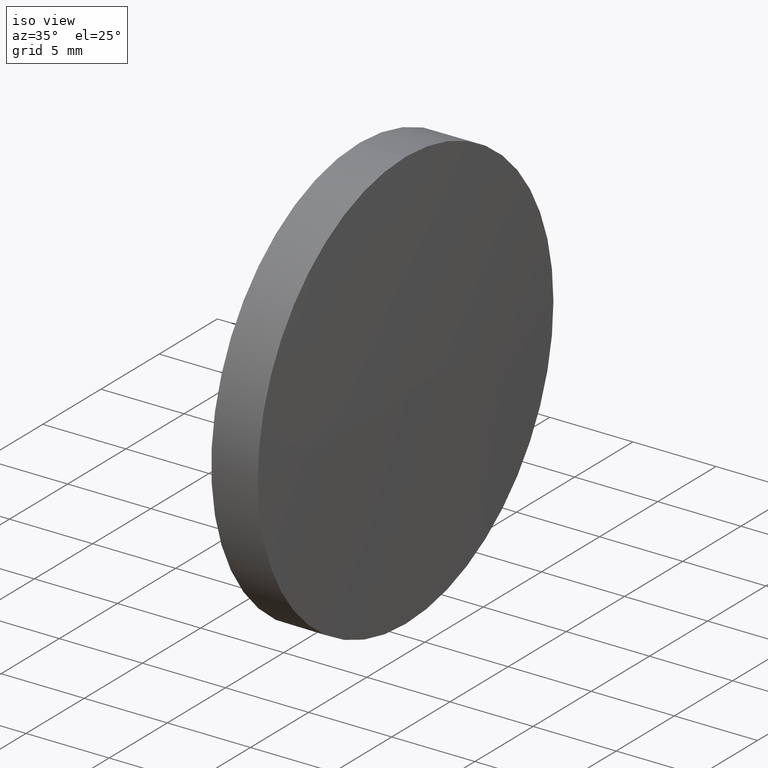
[diagram: clean part render]
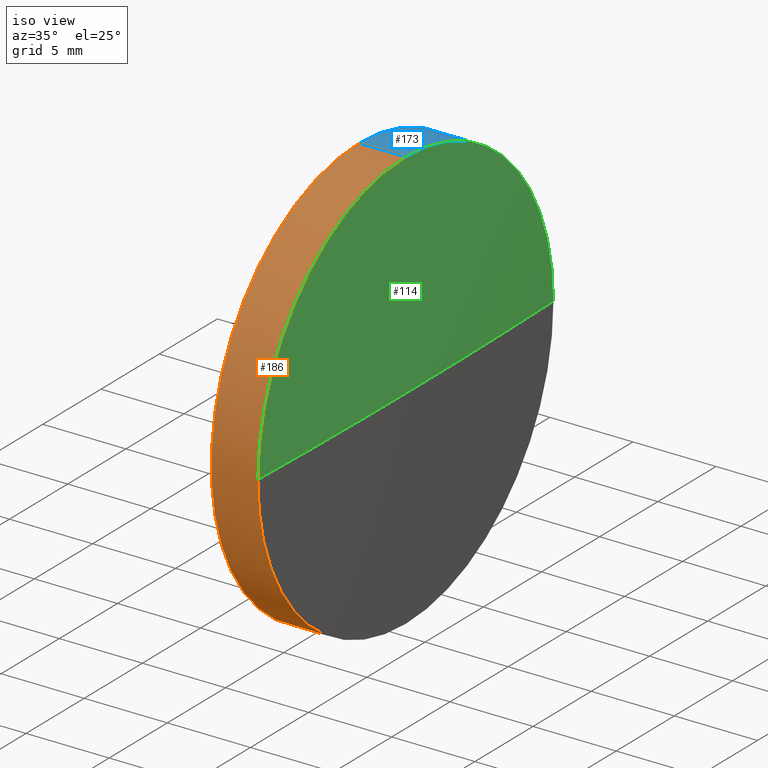
[diagram: same view with three faces highlighted in distinct colors, each labeled with its STEP entity id]
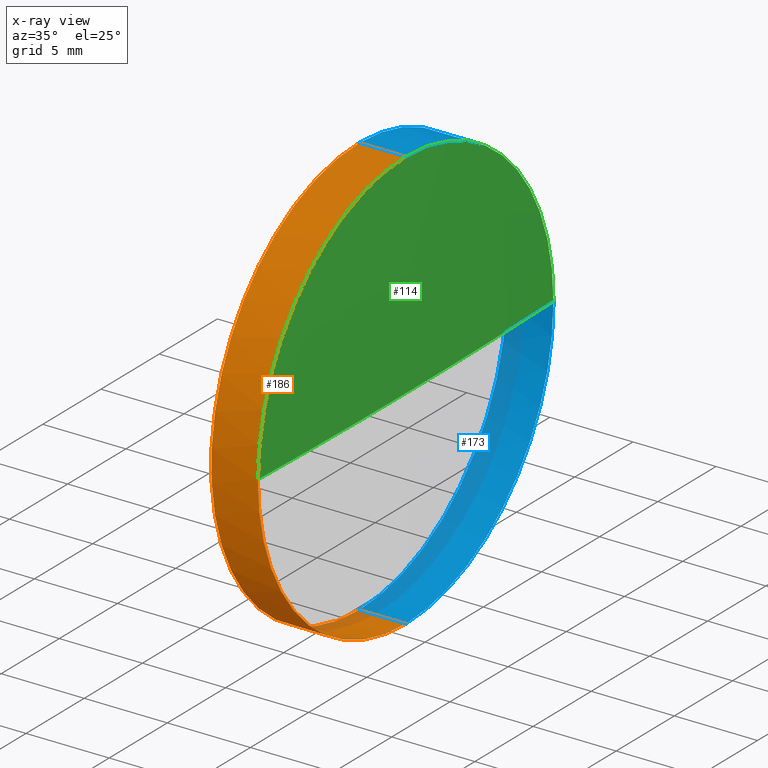
[diagram: x-ray of the same camera — body ghosted, the three highlighted faces saturated]
A machine part, iso view with three faces highlighted in distinct colors.
The next image is the same camera in x-ray (body ghosted, the three faces saturated) — at least one of them is partly hidden behind the body in this view.
Their STEP definitions:

[orange] entity #186 — the highlighted cylindrical surface (partial cylindrical patch) has radius 12.7 mm, axis along (-1, -0, -0).
#1 = ORIENTED_EDGE ( 'NONE', *, *, #10, .T. ) ;
#6 = CARTESIAN_POINT ( 'NONE',  ( 115.8700467759432500, 65.23355492641219700, 0.0000000000000000000 ) ) ;
#8 = CARTESIAN_POINT ( 'NONE',  ( 110.1653732284884500, 65.23355492641219700, -12.70000000000000300 ) ) ;
#9 = EDGE_CURVE ( 'NONE', #121, #133, #85, .T. ) ;
#10 = EDGE_CURVE ( 'NONE', #133, #123, #38, .T. ) ;
#12 = CIRCLE ( 'NONE', #127, 12.70000000000000300 ) ;
#20 = VECTOR ( 'NONE', #153, 1000.000000000000000 ) ;
#23 = LINE ( 'NONE', #8, #91 ) ;
#29 = DIRECTION ( 'NONE',  ( -1.000000000000000000, -0.0000000000000000000, -0.0000000000000000000 ) ) ;
#38 = CIRCLE ( 'NONE', #102, 12.70000000000000300 ) ;
#42 = CARTESIAN_POINT ( 'NONE',  ( 115.8700467759432500, 65.23355492641219700, 12.70000000000000300 ) ) ;
#43 = CARTESIAN_POINT ( 'NONE',  ( 110.1653732284884500, 65.23355492641219700, 0.0000000000000000000 ) ) ;
#54 = DIRECTION ( 'NONE',  ( -1.000000000000000000, -0.0000000000000000000, -0.0000000000000000000 ) ) ;
#55 = ORIENTED_EDGE ( 'NONE', *, *, #9, .T. ) ;
#59 = CARTESIAN_POINT ( 'NONE',  ( 115.8700467759432500, 65.23355492641219700, -12.70000000000000300 ) ) ;
#61 = DIRECTION ( 'NONE',  ( -1.000000000000000000, -0.0000000000000000000, -0.0000000000000000000 ) ) ;
#65 = ORIENTED_EDGE ( 'NONE', *, *, #129, .F. ) ;
#85 = CIRCLE ( 'NONE', #175, 12.70000000000000300 ) ;
#88 = CARTESIAN_POINT ( 'NONE',  ( 118.6700467759432500, 65.23355492641219700, 0.0000000000000000000 ) ) ;
#91 = VECTOR ( 'NONE', #29, 1000.000000000000000 ) ;
#92 = CARTESIAN_POINT ( 'NONE',  ( 110.1653732284884500, 65.23355492641219700, 12.70000000000000300 ) ) ;
#97 = ORIENTED_EDGE ( 'NONE', *, *, #113, .T. ) ;
#102 = AXIS2_PLACEMENT_3D ( 'NONE', #146, #54, #164 ) ;
#104 = DIRECTION ( 'NONE',  ( 0.0000000000000000000, 0.0000000000000000000, 1.000000000000000000 ) ) ;
#105 = DIRECTION ( 'NONE',  ( -1.000000000000000000, -0.0000000000000000000, -0.0000000000000000000 ) ) ;
#106 = VERTEX_POINT ( 'NONE', #42 ) ;
#113 = EDGE_CURVE ( 'NONE', #123, #106, #174, .T. ) ;
#115 = CYLINDRICAL_SURFACE ( 'NONE', #158, 12.70000000000000300 ) ;
#121 = VERTEX_POINT ( 'NONE', #180 ) ;
#123 = VERTEX_POINT ( 'NONE', #181 ) ;
#126 = DIRECTION ( 'NONE',  ( 0.0000000000000000000, 0.0000000000000000000, 1.000000000000000000 ) ) ;
#127 = AXIS2_PLACEMENT_3D ( 'NONE', #6, #105, #151 ) ;
#129 = EDGE_CURVE ( 'NONE', #155, #106, #12, .T. ) ;
#131 = EDGE_LOOP ( 'NONE', ( #160, #55, #1, #97, #65 ) ) ;
#133 = VERTEX_POINT ( 'NONE', #139 ) ;
#139 = CARTESIAN_POINT ( 'NONE',  ( 118.6700467759432300, 52.53355492641226500, 0.0000000000000000000 ) ) ;
#146 = CARTESIAN_POINT ( 'NONE',  ( 118.6700467759432500, 65.23355492641219700, 0.0000000000000000000 ) ) ;
#151 = DIRECTION ( 'NONE',  ( 0.0000000000000000000, 0.0000000000000000000, 1.000000000000000000 ) ) ;
#153 = DIRECTION ( 'NONE',  ( -1.000000000000000000, -0.0000000000000000000, -0.0000000000000000000 ) ) ;
#155 = VERTEX_POINT ( 'NONE', #59 ) ;
#158 = AXIS2_PLACEMENT_3D ( 'NONE', #43, #61, #126 ) ;
#160 = ORIENTED_EDGE ( 'NONE', *, *, #179, .F. ) ;
#164 = DIRECTION ( 'NONE',  ( 0.0000000000000000000, 0.0000000000000000000, 1.000000000000000000 ) ) ;
#170 = FACE_OUTER_BOUND ( 'NONE', #131, .T. ) ;
#174 = LINE ( 'NONE', #92, #20 ) ;
#175 = AXIS2_PLACEMENT_3D ( 'NONE', #88, #178, #104 ) ;
#178 = DIRECTION ( 'NONE',  ( -1.000000000000000000, -0.0000000000000000000, -0.0000000000000000000 ) ) ;
#179 = EDGE_CURVE ( 'NONE', #121, #155, #23, .T. ) ;
#180 = CARTESIAN_POINT ( 'NONE',  ( 118.6700467759432500, 65.23355492641219700, -12.70000000000000300 ) ) ;
#181 = CARTESIAN_POINT ( 'NONE',  ( 118.6700467759432500, 65.23355492641219700, 12.70000000000000300 ) ) ;
#186 = ADVANCED_FACE ( 'NONE', ( #170 ), #115, .T. ) ;

[blue] entity #173 — the highlighted cylindrical surface (partial cylindrical patch) has radius 12.7 mm, axis along (-1, -0, -0).
#8 = CARTESIAN_POINT ( 'NONE',  ( 110.1653732284884500, 65.23355492641219700, -12.70000000000000300 ) ) ;
#14 = DIRECTION ( 'NONE',  ( 0.0000000000000000000, 0.0000000000000000000, 1.000000000000000000 ) ) ;
#15 = CYLINDRICAL_SURFACE ( 'NONE', #117, 12.70000000000000300 ) ;
#20 = VECTOR ( 'NONE', #153, 1000.000000000000000 ) ;
#21 = EDGE_CURVE ( 'NONE', #123, #51, #145, .T. ) ;
#23 = LINE ( 'NONE', #8, #91 ) ;
#26 = CIRCLE ( 'NONE', #46, 12.70000000000000300 ) ;
#29 = DIRECTION ( 'NONE',  ( -1.000000000000000000, -0.0000000000000000000, -0.0000000000000000000 ) ) ;
#30 = DIRECTION ( 'NONE',  ( -1.000000000000000000, -0.0000000000000000000, -0.0000000000000000000 ) ) ;
#32 = DIRECTION ( 'NONE',  ( 0.0000000000000000000, 0.0000000000000000000, 1.000000000000000000 ) ) ;
#40 = CARTESIAN_POINT ( 'NONE',  ( 118.6700467759432500, 65.23355492641219700, 0.0000000000000000000 ) ) ;
#42 = CARTESIAN_POINT ( 'NONE',  ( 115.8700467759432500, 65.23355492641219700, 12.70000000000000300 ) ) ;
#46 = AXIS2_PLACEMENT_3D ( 'NONE', #118, #149, #148 ) ;
#47 = DIRECTION ( 'NONE',  ( 0.0000000000000000000, 0.0000000000000000000, 1.000000000000000000 ) ) ;
#48 = ORIENTED_EDGE ( 'NONE', *, *, #167, .F. ) ;
#49 = EDGE_CURVE ( 'NONE', #51, #121, #26, .T. ) ;
#51 = VERTEX_POINT ( 'NONE', #137 ) ;
#59 = CARTESIAN_POINT ( 'NONE',  ( 115.8700467759432500, 65.23355492641219700, -12.70000000000000300 ) ) ;
#68 = ORIENTED_EDGE ( 'NONE', *, *, #179, .T. ) ;
#76 = DIRECTION ( 'NONE',  ( -1.000000000000000000, -0.0000000000000000000, -0.0000000000000000000 ) ) ;
#87 = AXIS2_PLACEMENT_3D ( 'NONE', #166, #76, #32 ) ;
#91 = VECTOR ( 'NONE', #29, 1000.000000000000000 ) ;
#92 = CARTESIAN_POINT ( 'NONE',  ( 110.1653732284884500, 65.23355492641219700, 12.70000000000000300 ) ) ;
#94 = CARTESIAN_POINT ( 'NONE',  ( 110.1653732284884500, 65.23355492641219700, 0.0000000000000000000 ) ) ;
#106 = VERTEX_POINT ( 'NONE', #42 ) ;
#110 = ORIENTED_EDGE ( 'NONE', *, *, #113, .F. ) ;
#113 = EDGE_CURVE ( 'NONE', #123, #106, #174, .T. ) ;
#117 = AXIS2_PLACEMENT_3D ( 'NONE', #94, #30, #47 ) ;
#118 = CARTESIAN_POINT ( 'NONE',  ( 118.6700467759432500, 65.23355492641219700, 0.0000000000000000000 ) ) ;
#121 = VERTEX_POINT ( 'NONE', #180 ) ;
#123 = VERTEX_POINT ( 'NONE', #181 ) ;
#128 = EDGE_LOOP ( 'NONE', ( #184, #68, #48, #110, #172 ) ) ;
#130 = AXIS2_PLACEMENT_3D ( 'NONE', #40, #132, #14 ) ;
#132 = DIRECTION ( 'NONE',  ( -1.000000000000000000, -0.0000000000000000000, -0.0000000000000000000 ) ) ;
#137 = CARTESIAN_POINT ( 'NONE',  ( 118.6700467759432300, 77.93355492641259700, 1.555301434917131100E-015 ) ) ;
#141 = CIRCLE ( 'NONE', #87, 12.70000000000000300 ) ;
#145 = CIRCLE ( 'NONE', #130, 12.70000000000000300 ) ;
#148 = DIRECTION ( 'NONE',  ( 0.0000000000000000000, 0.0000000000000000000, 1.000000000000000000 ) ) ;
#149 = DIRECTION ( 'NONE',  ( -1.000000000000000000, -0.0000000000000000000, -0.0000000000000000000 ) ) ;
#150 = FACE_OUTER_BOUND ( 'NONE', #128, .T. ) ;
#153 = DIRECTION ( 'NONE',  ( -1.000000000000000000, -0.0000000000000000000, -0.0000000000000000000 ) ) ;
#155 = VERTEX_POINT ( 'NONE', #59 ) ;
#166 = CARTESIAN_POINT ( 'NONE',  ( 115.8700467759432500, 65.23355492641219700, 0.0000000000000000000 ) ) ;
#167 = EDGE_CURVE ( 'NONE', #106, #155, #141, .T. ) ;
#172 = ORIENTED_EDGE ( 'NONE', *, *, #21, .T. ) ;
#173 = ADVANCED_FACE ( 'NONE', ( #150 ), #15, .T. ) ;
#174 = LINE ( 'NONE', #92, #20 ) ;
#179 = EDGE_CURVE ( 'NONE', #121, #155, #23, .T. ) ;
#180 = CARTESIAN_POINT ( 'NONE',  ( 118.6700467759432500, 65.23355492641219700, -12.70000000000000300 ) ) ;
#181 = CARTESIAN_POINT ( 'NONE',  ( 118.6700467759432500, 65.23355492641219700, 12.70000000000000300 ) ) ;
#184 = ORIENTED_EDGE ( 'NONE', *, *, #49, .T. ) ;

[green] entity #114 — the highlighted spherical surface has radius 403.325 mm.
#2 = DIRECTION ( 'NONE',  ( 0.0000000000000000000, -1.224646799147353200E-016, 1.000000000000000000 ) ) ;
#10 = EDGE_CURVE ( 'NONE', #133, #123, #38, .T. ) ;
#14 = DIRECTION ( 'NONE',  ( 0.0000000000000000000, 0.0000000000000000000, 1.000000000000000000 ) ) ;
#16 = DIRECTION ( 'NONE',  ( 0.0000000000000000000, 0.0000000000000000000, 1.000000000000000000 ) ) ;
#17 = EDGE_CURVE ( 'NONE', #39, #51, #90, .T. ) ;
#21 = EDGE_CURVE ( 'NONE', #123, #51, #145, .T. ) ;
#28 = DIRECTION ( 'NONE',  ( 0.0000000000000000000, -1.000000000000000000, -1.224646799147353200E-016 ) ) ;
#33 = ORIENTED_EDGE ( 'NONE', *, *, #17, .T. ) ;
#35 = AXIS2_PLACEMENT_3D ( 'NONE', #119, #103, #53 ) ;
#37 = EDGE_LOOP ( 'NONE', ( #44, #33, #81, #83 ) ) ;
#38 = CIRCLE ( 'NONE', #102, 12.70000000000000300 ) ;
#39 = VERTEX_POINT ( 'NONE', #136 ) ;
#40 = CARTESIAN_POINT ( 'NONE',  ( 118.6700467759432500, 65.23355492641219700, 0.0000000000000000000 ) ) ;
#44 = ORIENTED_EDGE ( 'NONE', *, *, #86, .F. ) ;
#50 = AXIS2_PLACEMENT_3D ( 'NONE', #138, #16, #182 ) ;
#51 = VERTEX_POINT ( 'NONE', #137 ) ;
#53 = DIRECTION ( 'NONE',  ( -1.000000000000000000, 0.0000000000000000000, 0.0000000000000000000 ) ) ;
#54 = DIRECTION ( 'NONE',  ( -1.000000000000000000, -0.0000000000000000000, -0.0000000000000000000 ) ) ;
#81 = ORIENTED_EDGE ( 'NONE', *, *, #21, .F. ) ;
#83 = ORIENTED_EDGE ( 'NONE', *, *, #10, .F. ) ;
#86 = EDGE_CURVE ( 'NONE', #39, #133, #183, .T. ) ;
#90 = CIRCLE ( 'NONE', #161, 403.3249999999947000 ) ;
#102 = AXIS2_PLACEMENT_3D ( 'NONE', #146, #54, #164 ) ;
#103 = DIRECTION ( 'NONE',  ( 0.0000000000000000000, 0.0000000000000000000, -1.000000000000000000 ) ) ;
#114 = ADVANCED_FACE ( 'NONE', ( #177 ), #159, .T. ) ;
#119 = CARTESIAN_POINT ( 'NONE',  ( -284.4549532240514500, 65.23355492641265100, 0.0000000000000000000 ) ) ;
#123 = VERTEX_POINT ( 'NONE', #181 ) ;
#130 = AXIS2_PLACEMENT_3D ( 'NONE', #40, #132, #14 ) ;
#132 = DIRECTION ( 'NONE',  ( -1.000000000000000000, -0.0000000000000000000, -0.0000000000000000000 ) ) ;
#133 = VERTEX_POINT ( 'NONE', #139 ) ;
#136 = CARTESIAN_POINT ( 'NONE',  ( 118.8700467759432700, 65.23355492641262300, 0.0000000000000000000 ) ) ;
#137 = CARTESIAN_POINT ( 'NONE',  ( 118.6700467759432300, 77.93355492641259700, 1.555301434917131100E-015 ) ) ;
#138 = CARTESIAN_POINT ( 'NONE',  ( -284.4549532240514500, 65.23355492641265100, 0.0000000000000000000 ) ) ;
#139 = CARTESIAN_POINT ( 'NONE',  ( 118.6700467759432300, 52.53355492641226500, 0.0000000000000000000 ) ) ;
#144 = CARTESIAN_POINT ( 'NONE',  ( -284.4549532240514500, 65.23355492641265100, 0.0000000000000000000 ) ) ;
#145 = CIRCLE ( 'NONE', #130, 12.70000000000000300 ) ;
#146 = CARTESIAN_POINT ( 'NONE',  ( 118.6700467759432500, 65.23355492641219700, 0.0000000000000000000 ) ) ;
#159 = SPHERICAL_SURFACE ( 'NONE', #50, 403.3249999999947000 ) ;
#161 = AXIS2_PLACEMENT_3D ( 'NONE', #144, #2, #28 ) ;
#164 = DIRECTION ( 'NONE',  ( 0.0000000000000000000, 0.0000000000000000000, 1.000000000000000000 ) ) ;
#177 = FACE_OUTER_BOUND ( 'NONE', #37, .T. ) ;
#181 = CARTESIAN_POINT ( 'NONE',  ( 118.6700467759432500, 65.23355492641219700, 12.70000000000000300 ) ) ;
#182 = DIRECTION ( 'NONE',  ( 0.0000000000000000000, -1.000000000000000000, 0.0000000000000000000 ) ) ;
#183 = CIRCLE ( 'NONE', #35, 403.3249999999947000 ) ;